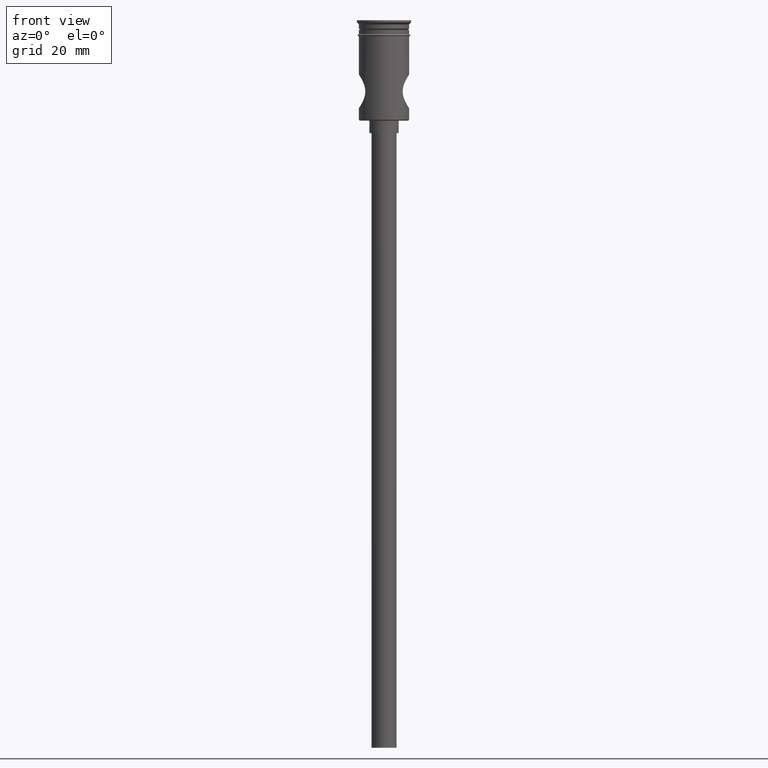
[diagram: clean part render]
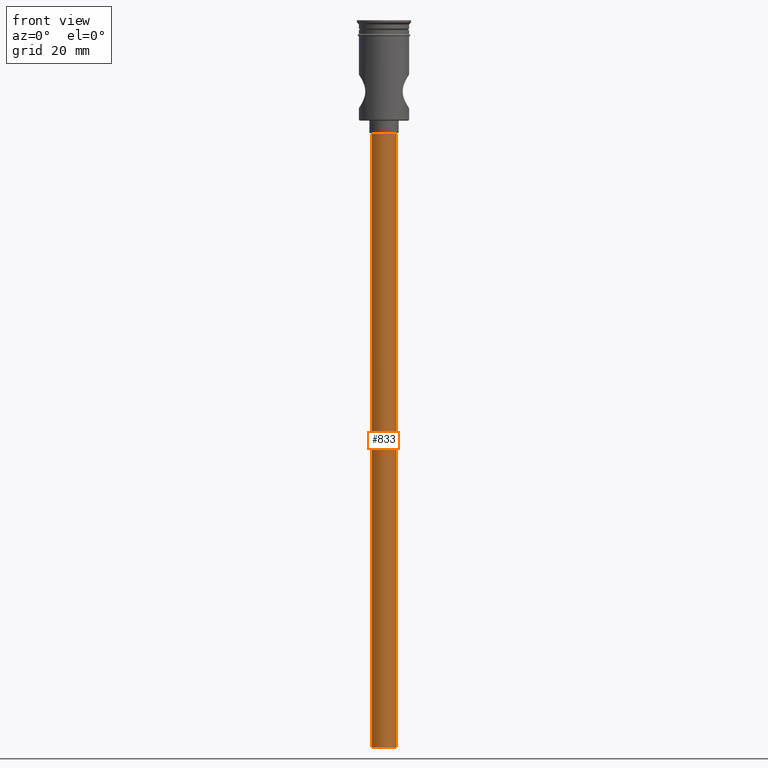
[diagram: same view with one face highlighted and labeled with its STEP entity id]
A machine part, front view. The second image highlights one B-rep face of the part: STEP entity #833.
In plain terms, the highlighted cylindrical surface (edge-blend (fillet) strip) has radius 3 mm, axis along (-0, -0, 1).
Its self-contained STEP definition (entity closure, byte-faithful):
#8 = CARTESIAN_POINT ( 'NONE',  ( 0.000000000000000000, 0.000000000000000000, -27.00000000000000000 ) ) ;
#61 = CARTESIAN_POINT ( 'NONE',  ( -3.000000000000000444, 3.673940397442060361E-16, -174.0000000000000000 ) ) ;
#130 = AXIS2_PLACEMENT_3D ( 'NONE', #1232, #352, #467 ) ;
#171 = CARTESIAN_POINT ( 'NONE',  ( 0.000000000000000000, 0.000000000000000000, -174.0000000000000000 ) ) ;
#174 = ORIENTED_EDGE ( 'NONE', *, *, #681, .F. ) ;
#199 = ORIENTED_EDGE ( 'NONE', *, *, #1418, .F. ) ;
#237 = DIRECTION ( 'NONE',  ( -0.000000000000000000, -0.000000000000000000, 1.000000000000000000 ) ) ;
#352 = DIRECTION ( 'NONE',  ( 0.000000000000000000, 0.000000000000000000, -1.000000000000000000 ) ) ;
#374 = DIRECTION ( 'NONE',  ( 0.000000000000000000, 0.000000000000000000, -1.000000000000000000 ) ) ;
#393 = AXIS2_PLACEMENT_3D ( 'NONE', #171, #1429, #1318 ) ;
#408 = VERTEX_POINT ( 'NONE', #784 ) ;
#421 = VERTEX_POINT ( 'NONE', #475 ) ;
#467 = DIRECTION ( 'NONE',  ( -1.000000000000000000, 0.000000000000000000, 0.000000000000000000 ) ) ;
#475 = CARTESIAN_POINT ( 'NONE',  ( -3.000000000000000444, 3.673940397442060361E-16, -27.00000000000000000 ) ) ;
#484 = LINE ( 'NONE', #617, #689 ) ;
#487 = CARTESIAN_POINT ( 'NONE',  ( 3.000000000000000444, 0.000000000000000000, -174.0000000000000000 ) ) ;
#494 = LINE ( 'NONE', #487, #1459 ) ;
#542 = CYLINDRICAL_SURFACE ( 'NONE', #393, 3.000000000000000444 ) ;
#551 = EDGE_CURVE ( 'NONE', #408, #1334, #494, .T. ) ;
#583 = ORIENTED_EDGE ( 'NONE', *, *, #1007, .T. ) ;
#593 = CIRCLE ( 'NONE', #130, 3.000000000000000444 ) ;
#617 = CARTESIAN_POINT ( 'NONE',  ( -3.000000000000000444, 3.673940397442060361E-16, -174.0000000000000000 ) ) ;
#681 = EDGE_CURVE ( 'NONE', #877, #421, #484, .T. ) ;
#689 = VECTOR ( 'NONE', #1062, 1000.000000000000000 ) ;
#691 = AXIS2_PLACEMENT_3D ( 'NONE', #8, #374, #1282 ) ;
#769 = ORIENTED_EDGE ( 'NONE', *, *, #551, .T. ) ;
#784 = CARTESIAN_POINT ( 'NONE',  ( 3.000000000000000444, 0.000000000000000000, -174.0000000000000000 ) ) ;
#833 = ADVANCED_FACE ( 'NONE', ( #955 ), #542, .T. ) ;
#877 = VERTEX_POINT ( 'NONE', #61 ) ;
#955 = FACE_OUTER_BOUND ( 'NONE', #1466, .T. ) ;
#963 = CIRCLE ( 'NONE', #691, 3.000000000000000444 ) ;
#1007 = EDGE_CURVE ( 'NONE', #1334, #421, #963, .T. ) ;
#1062 = DIRECTION ( 'NONE',  ( -0.000000000000000000, -0.000000000000000000, 1.000000000000000000 ) ) ;
#1232 = CARTESIAN_POINT ( 'NONE',  ( 0.000000000000000000, 0.000000000000000000, -174.0000000000000000 ) ) ;
#1282 = DIRECTION ( 'NONE',  ( -1.000000000000000000, 0.000000000000000000, 0.000000000000000000 ) ) ;
#1318 = DIRECTION ( 'NONE',  ( 1.000000000000000000, 0.000000000000000000, 0.000000000000000000 ) ) ;
#1334 = VERTEX_POINT ( 'NONE', #1354 ) ;
#1354 = CARTESIAN_POINT ( 'NONE',  ( 3.000000000000000444, 0.000000000000000000, -27.00000000000000000 ) ) ;
#1418 = EDGE_CURVE ( 'NONE', #408, #877, #593, .T. ) ;
#1429 = DIRECTION ( 'NONE',  ( -0.000000000000000000, -0.000000000000000000, 1.000000000000000000 ) ) ;
#1459 = VECTOR ( 'NONE', #237, 1000.000000000000000 ) ;
#1466 = EDGE_LOOP ( 'NONE', ( #174, #199, #769, #583 ) ) ;